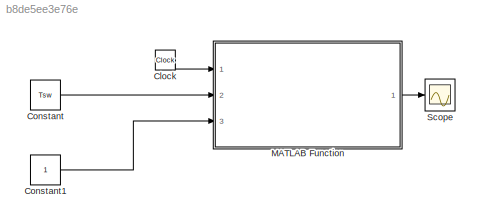
MODEL slx_b8de5ee3e76e
KIND model
CONFIG AbsTol = auto
CONFIG FixedStep = 1e-7
CONFIG MaxStep = auto
CONFIG MinStep = auto
CONFIG RelTol = 1e-3
CONFIG SampleTimeConstraint = Unconstrained
CONFIG Solver = ode3
CONFIG SolverMode = Auto
CONFIG SolverName = ode3
CONFIG StartTime = 0.0
CONFIG StopTime = 10*Tsw
BLOCK [Clock] Clock
BLOCK [Constant] Constant
  Value = Tsw
BLOCK [Constant] Constant1
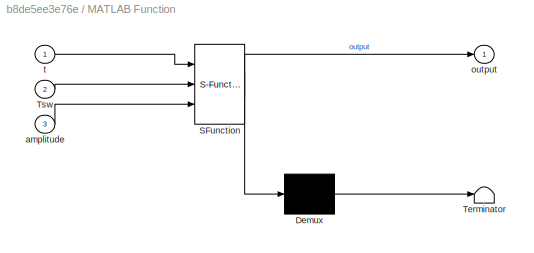
BLOCK [SubSystem] MATLAB Function
  ErrorFcn = Stateflow.Translate.translate
  PermitHierarchicalResolution = ExplicitOnly
  Ports = [3, 1]
  RequestExecContextInheritance = off
  SFBlockType = MATLAB Function
  TreatAsAtomicUnit = on
BLOCK [Demux] MATLAB Function/ Demux 
  Outputs = 1
  Ports = [1, 1]
BLOCK [S-Function] MATLAB Function/ SFunction 
  EnableBusSupport = on
  FunctionName = sf_sfun
  PortCounts = [3 2]
  Ports = [3, 2]
  Tag = Stateflow S-Function dents_scie_generation 2
BLOCK [Terminator] MATLAB Function/ Terminator 
BLOCK [Inport] MATLAB Function/Tsw
  IconDisplay = Port number
  Port = 2
BLOCK [Inport] MATLAB Function/amplitude
  IconDisplay = Port number
  Port = 3
BLOCK [Outport] MATLAB Function/output
  IconDisplay = Port number
BLOCK [Inport] MATLAB Function/t
  IconDisplay = Port number
BLOCK [Scope] Scope
  Floating = off
  LimitDataPoints = off
  NumInputPorts = 1
  Ports = [1]
LINE Clock:1 -> MATLAB Function:1
LINE Constant1:1 -> MATLAB Function:3
LINE Constant:1 -> MATLAB Function:2
LINE MATLAB Function:1 -> Scope:1
CHART MATLAB Function states=1 transitions=1
  STATE_LABEL 'eML_blk_kernel()'
  STATE_LABEL 'SCRIPT:\nfunction output = triangle(t,Tsw,amplitude)\n%#codegen\n%persistent signal ; \npersistent t_offset ; \n\nif isempty(t_offset) \n    t_offset = 0 ;  \nend\n\nif (t-t_offset>Tsw)\n    t_offset = t ; \n    \nend \n\nif ((t-t_offset)<=(Tsw/2))\n    signal = -amplitude + (t-t_offset)*2*amplitude/(Tsw/2) ; \n   output = signal ;\n   return \n\n\nelse\n    signal = 3*amplitude -  (t-t_offset)*2*amplitude/(Tsw/2) ; \n ...<+42ch>'
